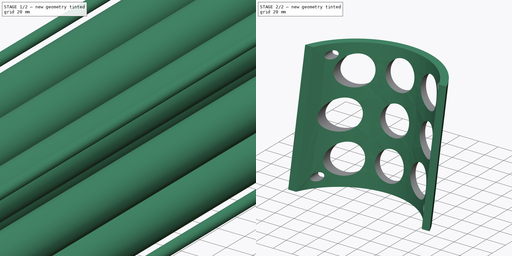
[diagram: build sequence overview — one tinted view per stage of 2, left to right]
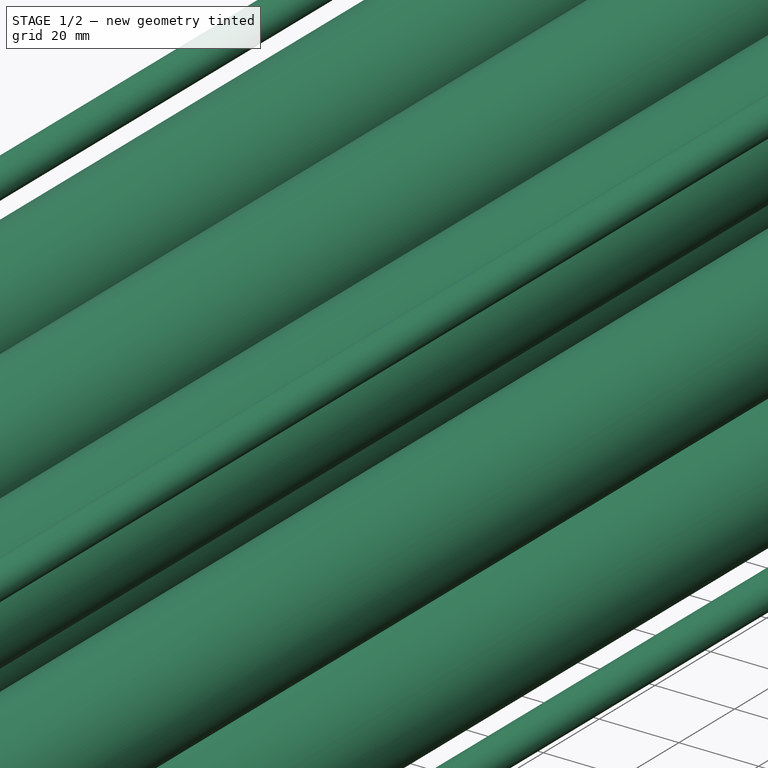
[diagram: stage 1 of 2 — iso view after this stage's code; geometry added in this stage tinted green]
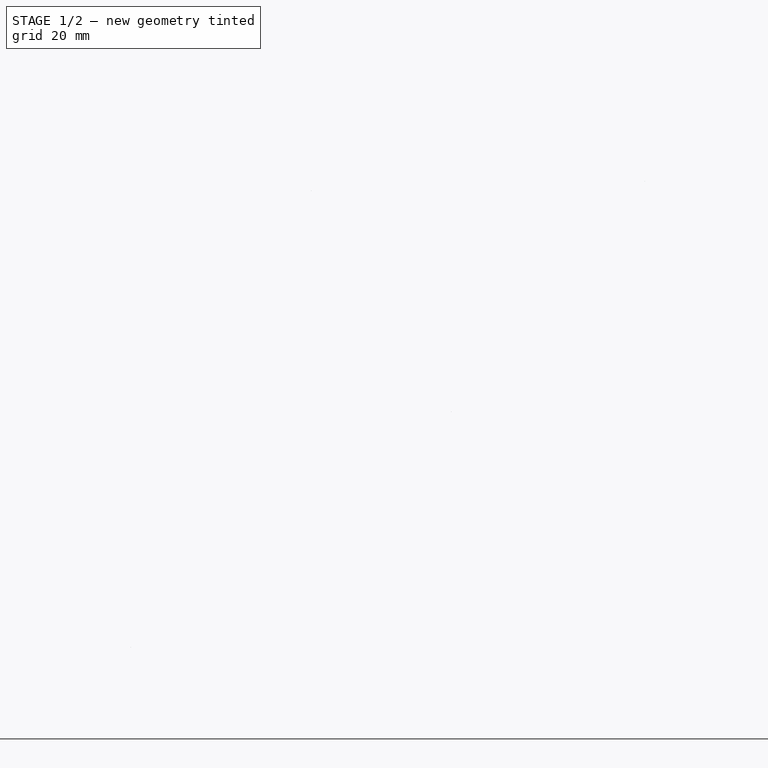
[diagram: stage 1 of 2 — front view after this stage's code; geometry added in this stage tinted green]
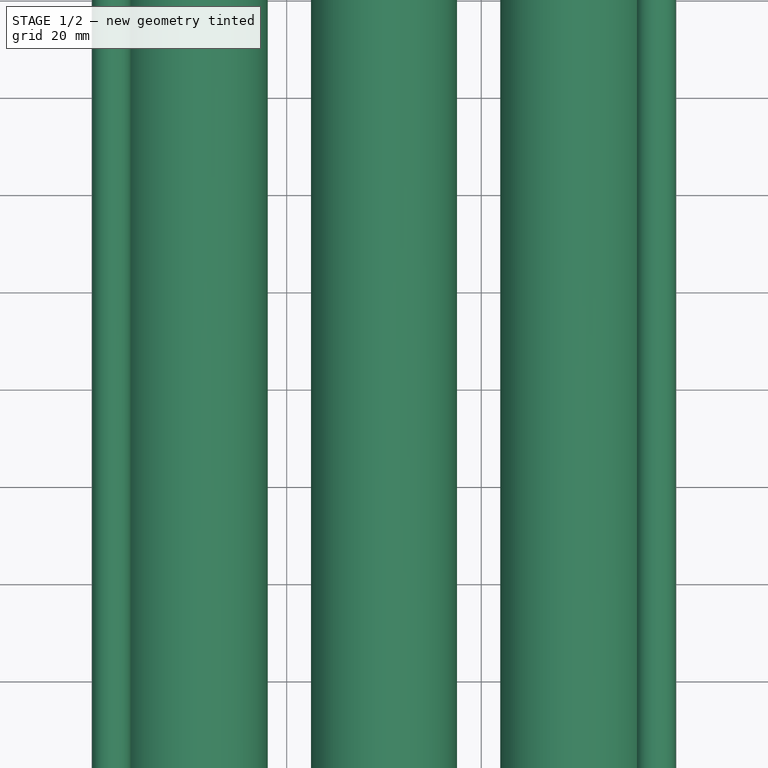
[diagram: stage 1 of 2 — top view after this stage's code; geometry added in this stage tinted green]
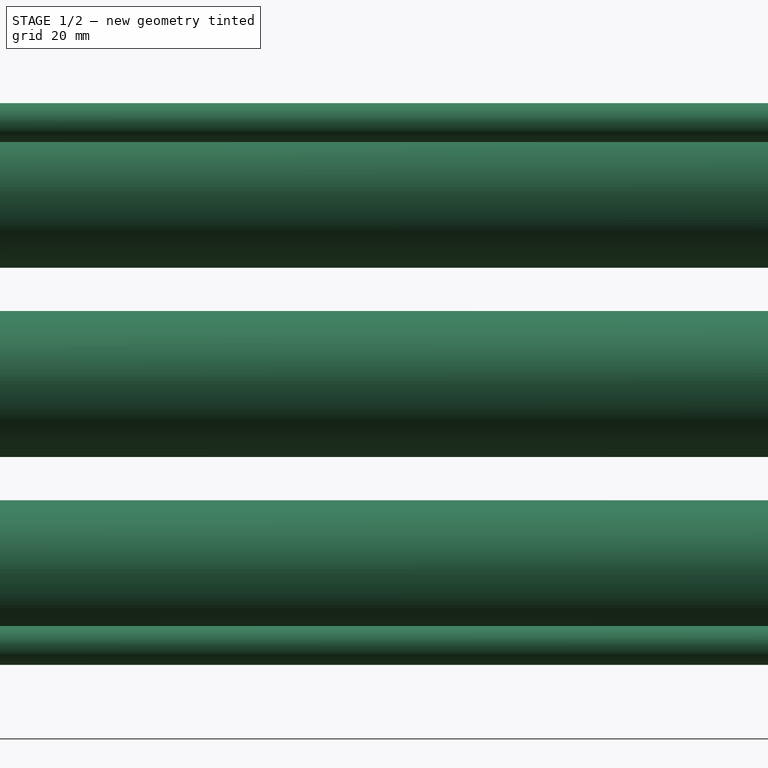
[diagram: stage 1 of 2 — right view after this stage's code; geometry added in this stage tinted green]
FCSTD DOCUMENT  (FreeCAD 0.18R)
Label: VR_Headset_Hanger
License: All rights reserved
LicenseURL: http://en.wikipedia.org/wiki/All_rights_reserved
objects: Sketcher::SketchObject×2, Part::Extrusion×2, Part::Cut×1
note: 5 computed .brp shape members not serialized (recipe doc carries the construction recipe); baked Part::Feature solids carry a one-line shape summary decoded from their .brp

FEATURE [Sketcher::SketchObject] Sketch
  sketch-geometry (6):
    g0: ArcOfCircle CenterX=0 CenterY=-30 CenterZ=0 NormalX=0 NormalY=0 NormalZ=1 AngleXU=0 Radius=80 StartAngle=0.384397 EndAngle=2.7572
    g1: GeomPoint X=0 Y=50 Z=0
    g2: ArcOfCircle CenterX=0 CenterY=-30 CenterZ=0 NormalX=0 NormalY=0 NormalZ=1 AngleXU=0 Radius=72.5 StartAngle=0.426617 EndAngle=2.71498
    g3: GeomPoint X=0 Y=42.5 Z=0
    g4: LineSegment StartX=-66.0019 StartY=-1.42e-14 StartZ=0 EndX=-74.162 EndY=-3.6e-15 EndZ=0
    g5: LineSegment StartX=74.162 StartY=0 StartZ=0 EndX=66.0019 EndY=0 EndZ=0
  constraints (18):
    c: PointOnObject(g0,g-1)
    c: PointOnObject(g0,g-1)
    c: Radius(g0) = 80
    c: PointOnObject(g1,g0)
    c: PointOnObject(g1,g-2)
    c: DistanceY(g-1,g1) = 50
    c: Coincident(g2,g0)
    c: PointOnObject(g2,g-1)
    c: PointOnObject(g2,g-1)
    c: PointOnObject(g3,g2)
    c: PointOnObject(g3,g-2)
    c: DistanceY(g3,g1) = 7.5
    c: Coincident(g4,g2)
    c: Coincident(g4,g0)
    c: Coincident(g5,g0)
    c: Coincident(g5,g2)
    c: PointOnObject(g0,g-2)
    c: DistanceX(g0,g0) = 148.324
FEATURE [Part::Extrusion] Extrude
  Base = -> Sketch
  Dir = (0,1,5)
  DirMode = 0
  FaceMakerClass = Part::FaceMakerBullseye
  LengthFwd = 130
  LengthRev = 0
  Solid = true
  Symmetric = false
FEATURE [Sketcher::SketchObject] Sketch001
  ExternalGeometry = -> [Extrude]
  Placement = pos=(0,0,0) rot=(1,0,0;1.5708rad)
  sketch-geometry (17):
    g0: Circle CenterX=-56.0019 CenterY=10 CenterZ=0 NormalX=0 NormalY=0 NormalZ=1 AngleXU=0 Radius=4
    g1: Circle CenterX=56.0019 CenterY=10 CenterZ=0 NormalX=0 NormalY=0 NormalZ=1 AngleXU=0 Radius=4
    g2: LineSegment [constr] StartX=-56.0019 StartY=10 StartZ=0 EndX=-56.0019 EndY=117.475 EndZ=0
    g3: Circle CenterX=-56.0019 CenterY=117.475 CenterZ=0 NormalX=0 NormalY=0 NormalZ=1 AngleXU=0 Radius=4
    g4: Circle CenterX=56.0019 CenterY=117.475 CenterZ=0 NormalX=0 NormalY=0 NormalZ=1 AngleXU=0 Radius=4
    g5: Circle CenterX=0 CenterY=63.7377 CenterZ=0 NormalX=0 NormalY=0 NormalZ=1 AngleXU=0 Radius=15
    g6: Circle CenterX=0 CenterY=103.738 CenterZ=0 NormalX=0 NormalY=0 NormalZ=1 AngleXU=0 Radius=15
    g7: Circle CenterX=0 CenterY=23.7377 CenterZ=0 NormalX=0 NormalY=0 NormalZ=1 AngleXU=0 Radius=15
    g8: LineSegment [constr] StartX=-66.0019 StartY=63.7377 StartZ=0 EndX=0 EndY=63.7377 EndZ=0
    g9: Circle CenterX=-45 CenterY=63.7377 CenterZ=0 NormalX=0 NormalY=0 NormalZ=1 AngleXU=0 Radius=15
    g10: Circle CenterX=45 CenterY=63.7377 CenterZ=0 NormalX=0 NormalY=0 NormalZ=1 AngleXU=0 Radius=15
    g11: LineSegment [constr] StartX=-38.8909 StartY=24.8469 StartZ=0 EndX=38.8909 EndY=102.629 EndZ=0
    g12: LineSegment [constr] StartX=-38.8909 StartY=102.629 StartZ=0 EndX=38.8909 EndY=24.8469 EndZ=0
    g13: Circle CenterX=38.8909 CenterY=24.8469 CenterZ=0 NormalX=0 NormalY=0 NormalZ=1 AngleXU=0 Radius=15
    g14: Circle CenterX=38.8909 CenterY=102.629 CenterZ=0 NormalX=0 NormalY=0 NormalZ=1 AngleXU=0 Radius=15
    g15: Circle CenterX=-38.8909 CenterY=102.629 CenterZ=0 NormalX=0 NormalY=0 NormalZ=1 AngleXU=0 Radius=15
    g16: Circle CenterX=-38.8909 CenterY=24.8469 CenterZ=0 NormalX=0 NormalY=0 NormalZ=1 AngleXU=0 Radius=15
  constraints (41):
    c: Symmetric(g1,g0,g-2)
    c: DistanceY(g-1,g0) = 10
    c: Radius(g0) = 4
    c: DistanceX(g-3,g0) = 10
    c: Equal(g1,g0)
    c: Coincident(g2,g0)
    c: Vertical(g2)
    c: Coincident(g3,g2)
    c: Equal(g3,g0)
    c: Symmetric(g4,g3,g-2)
    c: DistanceY(g3,g-3) = 10
    c: Equal(g4,g3)
    c: PointOnObject(g6,g-2)
    c: Symmetric(g6,g7,g5)
    c: Coincident(g8,g5)
    c: Horizontal(g8)
    c: Symmetric(g-3,g-3,g8)
    c: Equal(g6,g7)
    c: Equal(g7,g5)
    c: Radius(g5) = 15
    c: PointOnObject(g9,g8)
    c: Symmetric(g10,g9,g5)
    c: Equal(g9,g10)
    c: Equal(g10,g5)
    c: PointOnObject(g5,g-2)
    c: DistanceX(g9,g5) = 45
    c: DistanceY(g7,g5) = 40
    c: Equal(g12,g11)
    c: Symmetric(g12,g12,g5)
    c: Symmetric(g11,g11,g5)
    c: Perpendicular(g12,g11)
    c: Angle(g11,g-2) = 0.785398
    c: Coincident(g13,g12)
    c: Coincident(g14,g11)
    c: Coincident(g15,g12)
    c: Coincident(g16,g11)
    c: Radius(g13) = 15
    c: Equal(g13,g14)
    c: Equal(g14,g15)
    c: Equal(g15,g16)
    c: Distance(g13,g5) = 55
FEATURE [Part::Extrusion] Extrude001
  Base = -> Sketch001
  Dir = (0,1,0)
  DirMode = 0
  FaceMakerClass = Part::FaceMakerBullseye
  LengthFwd = 1000
  LengthRev = 0
  Solid = true
  Symmetric = false
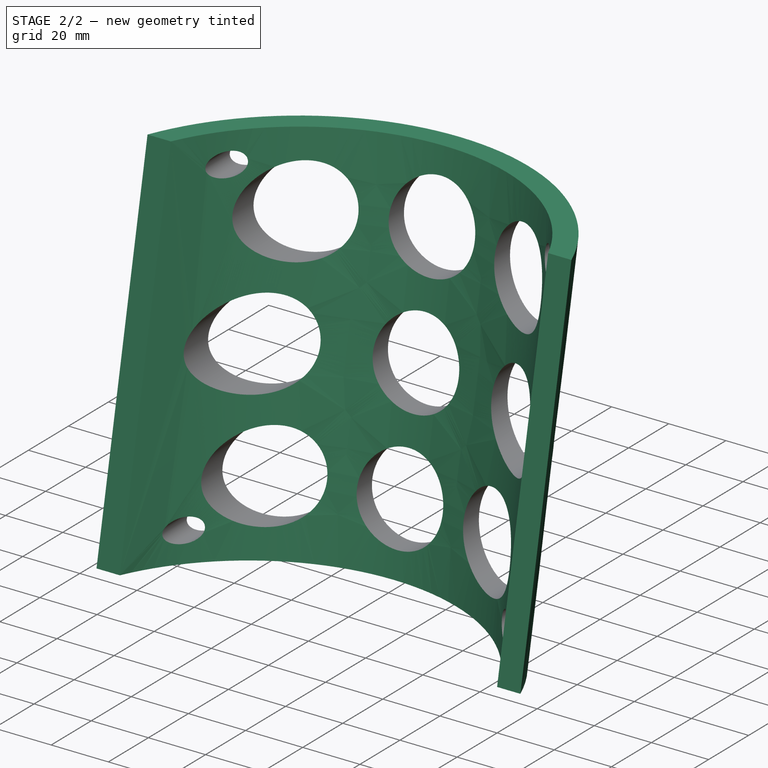
[diagram: stage 2 of 2 — iso view after this stage's code; geometry added in this stage tinted green]
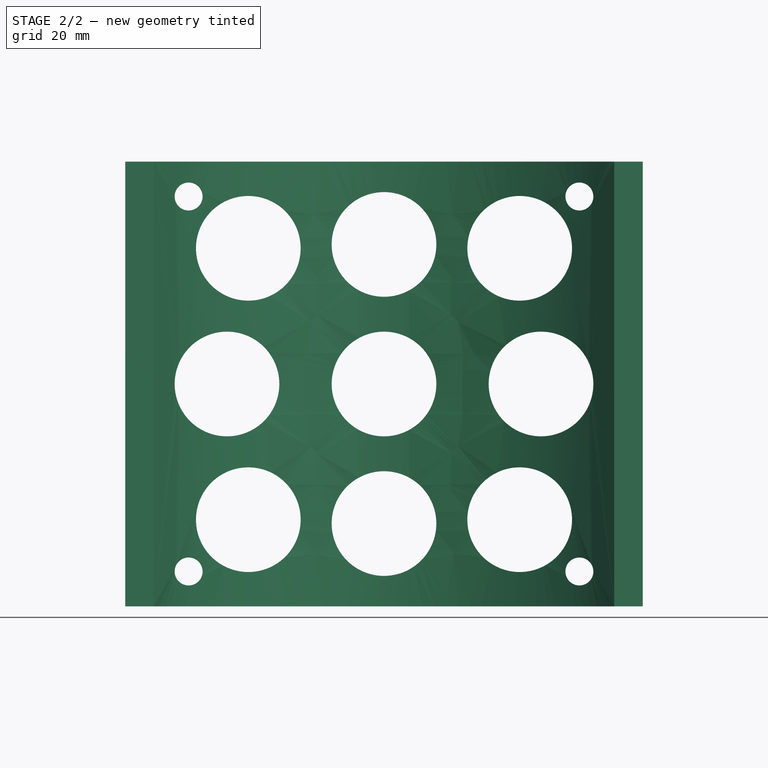
[diagram: stage 2 of 2 — front view after this stage's code; geometry added in this stage tinted green]
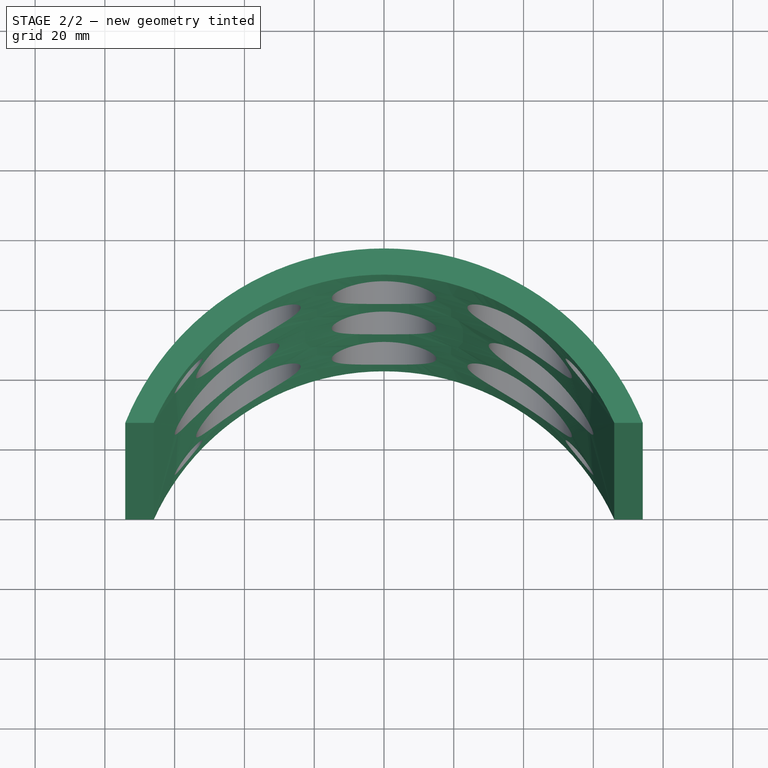
[diagram: stage 2 of 2 — top view after this stage's code; geometry added in this stage tinted green]
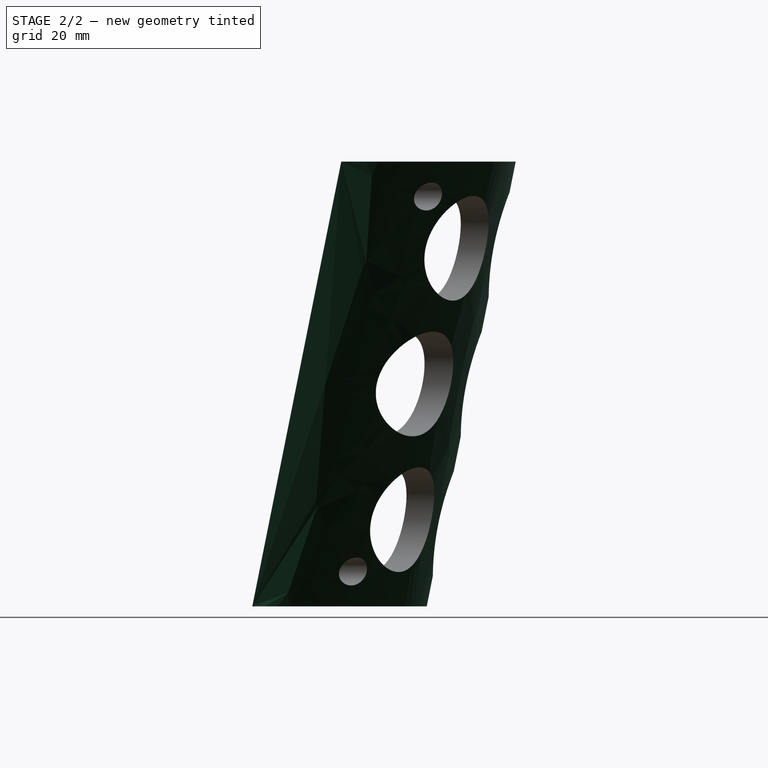
[diagram: stage 2 of 2 — right view after this stage's code; geometry added in this stage tinted green]
FEATURE [Part::Cut] Cut
  Base = -> Extrude
  Tool = -> Extrude001
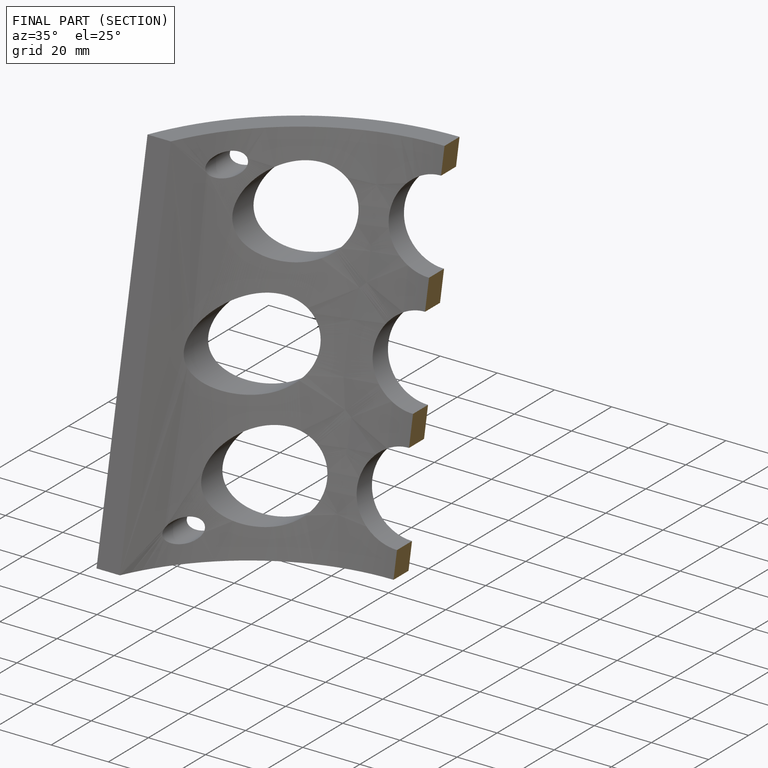
[diagram: finished part — half-section view (interior)]
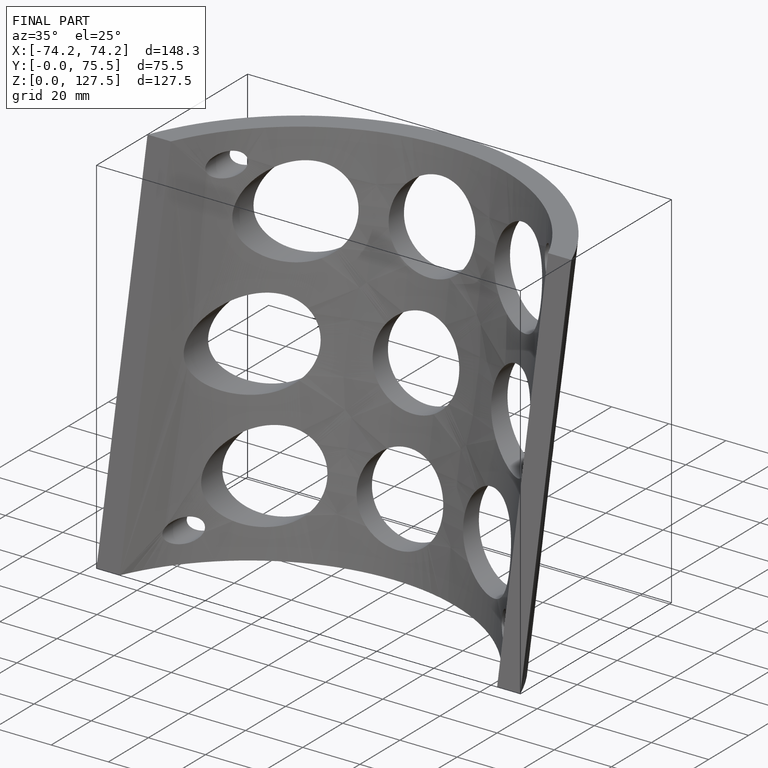
[diagram: finished part — iso view with bounding-box wireframe]
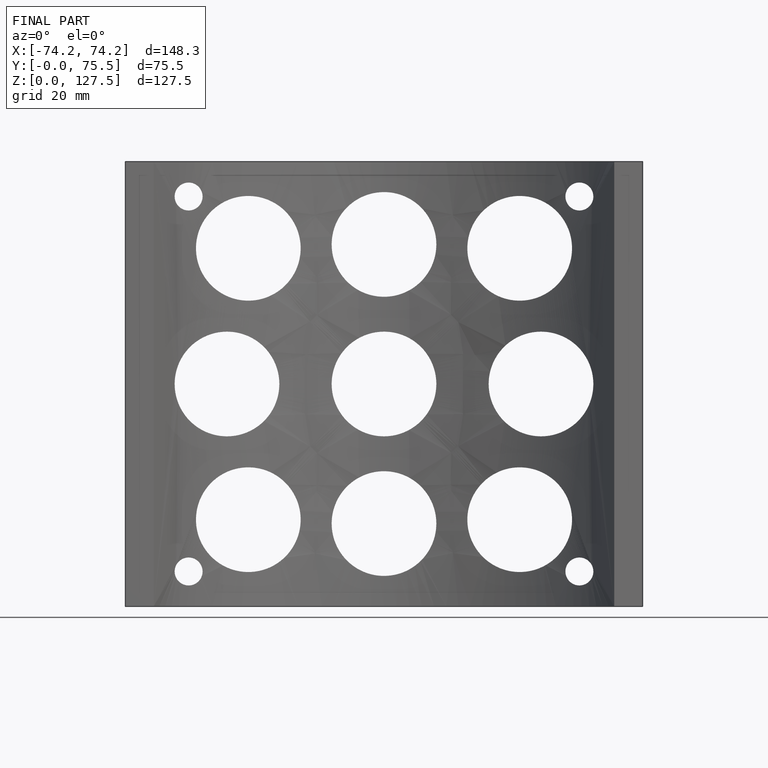
[diagram: finished part — front view with bounding-box wireframe]
